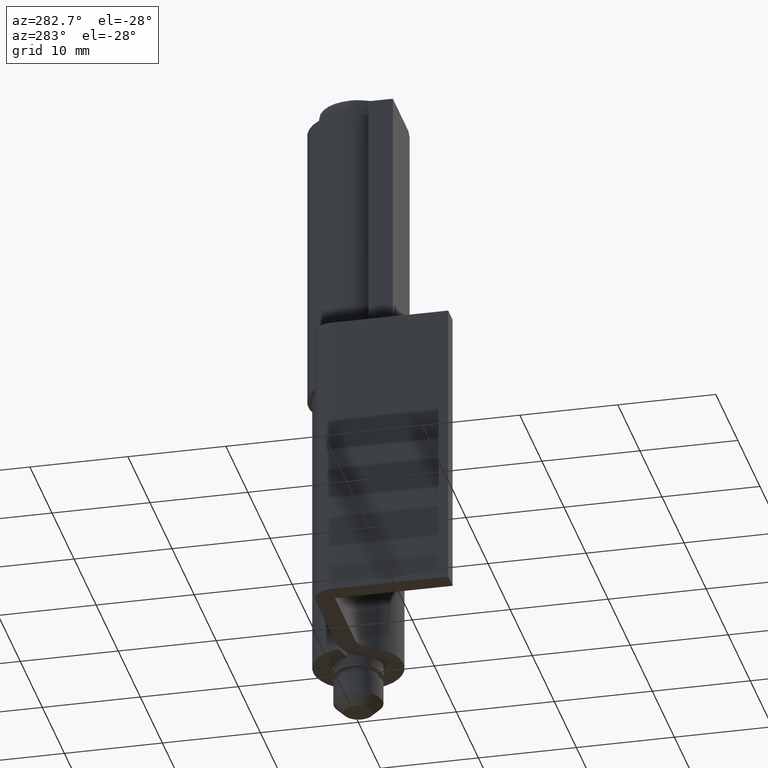
[diagram: clean part render]
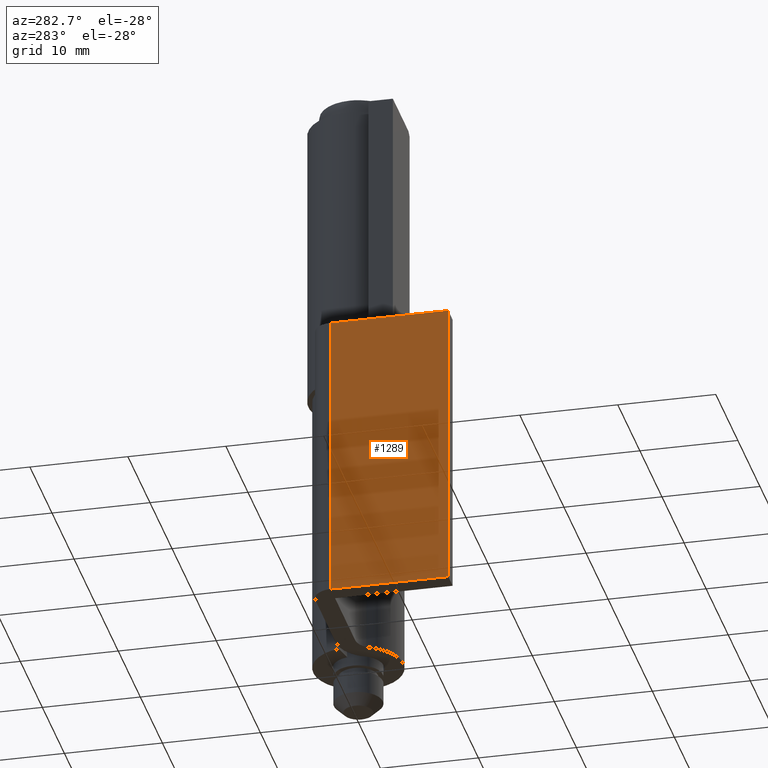
[diagram: same view with one face highlighted and labeled with its STEP entity id]
A machine part, auxiliary view. The second image highlights one B-rep face of the part: STEP entity #1289.
In plain terms, the highlighted face is a freeform B-spline surface patch.
Its self-contained STEP definition (entity closure, byte-faithful):
#997=CARTESIAN_POINT('',(-17.0,-13.0,4.999999999999890));
#998=VERTEX_POINT('',#997);
#1006=CARTESIAN_POINT('',(-17.0,-1.000000174532924,4.999999999999890));
#1007=VERTEX_POINT('',#1006);
#1008=CARTESIAN_POINT('',(-17.0,-1.000000174532924,4.999999999999890));
#1009=CARTESIAN_POINT('',(-17.0,-13.0,4.999999999999890));
#1010=QUASI_UNIFORM_CURVE('',1,(#1008,#1009),.UNSPECIFIED.,.F.,.U.);
#1011=EDGE_CURVE('',#1007,#998,#1010,.T.);
#1136=CARTESIAN_POINT('',(-17.0,-13.0,34.999991999999949));
#1137=VERTEX_POINT('',#1136);
#1245=CARTESIAN_POINT('',(-17.0,-1.000000174532924,34.999991999999949));
#1246=VERTEX_POINT('',#1245);
#1262=CARTESIAN_POINT('',(-17.0,-1.000000174532924,34.999991999999949));
#1263=CARTESIAN_POINT('',(-17.0,-13.0,34.999991999999949));
#1264=QUASI_UNIFORM_CURVE('',1,(#1262,#1263),.UNSPECIFIED.,.F.,.U.);
#1265=EDGE_CURVE('',#1246,#1137,#1264,.T.);
#1270=CARTESIAN_POINT('',(-17.0,-13.599399968023761,36.498492105491067));
#1271=CARTESIAN_POINT('',(-17.0,-13.599399968023761,3.501499626287945));
#1272=CARTESIAN_POINT('',(-17.0,-0.400599884644095,36.498492105491067));
#1273=CARTESIAN_POINT('',(-17.0,-0.400599884644095,3.501499626287945));
#1274=B_SPLINE_SURFACE_WITH_KNOTS('',1,1,((#1270,#1272),(#1271,#1273)),.UNSPECIFIED.,.F.,.F.,.U.,(2,2),(2,2),(0.0,32.996992479203122),(0.0,13.198800083379661),.UNSPECIFIED.);
#1275=ORIENTED_EDGE('',*,*,#1011,.T.);
#1276=CARTESIAN_POINT('',(-17.0,-13.0,34.999991999999949));
#1277=CARTESIAN_POINT('',(-17.0,-13.0,4.999999999999890));
#1278=QUASI_UNIFORM_CURVE('',1,(#1276,#1277),.UNSPECIFIED.,.F.,.U.);
#1279=EDGE_CURVE('',#1137,#998,#1278,.T.);
#1280=ORIENTED_EDGE('',*,*,#1279,.F.);
#1281=ORIENTED_EDGE('',*,*,#1265,.F.);
#1282=CARTESIAN_POINT('',(-17.0,-1.000000174532924,34.999991999999949));
#1283=CARTESIAN_POINT('',(-17.0,-1.000000174532924,4.999999999999890));
#1284=QUASI_UNIFORM_CURVE('',1,(#1282,#1283),.UNSPECIFIED.,.F.,.U.);
#1285=EDGE_CURVE('',#1246,#1007,#1284,.T.);
#1286=ORIENTED_EDGE('',*,*,#1285,.T.);
#1287=EDGE_LOOP('',(#1275,#1280,#1281,#1286));
#1288=FACE_OUTER_BOUND('',#1287,.T.);
#1289=ADVANCED_FACE('',(#1288),#1274,.F.);